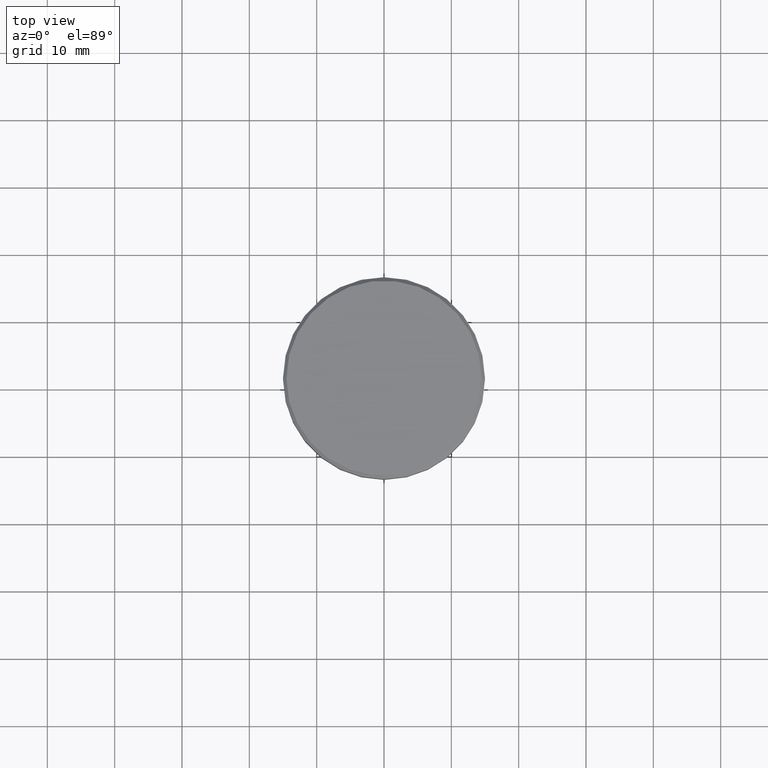
[diagram: clean part render]
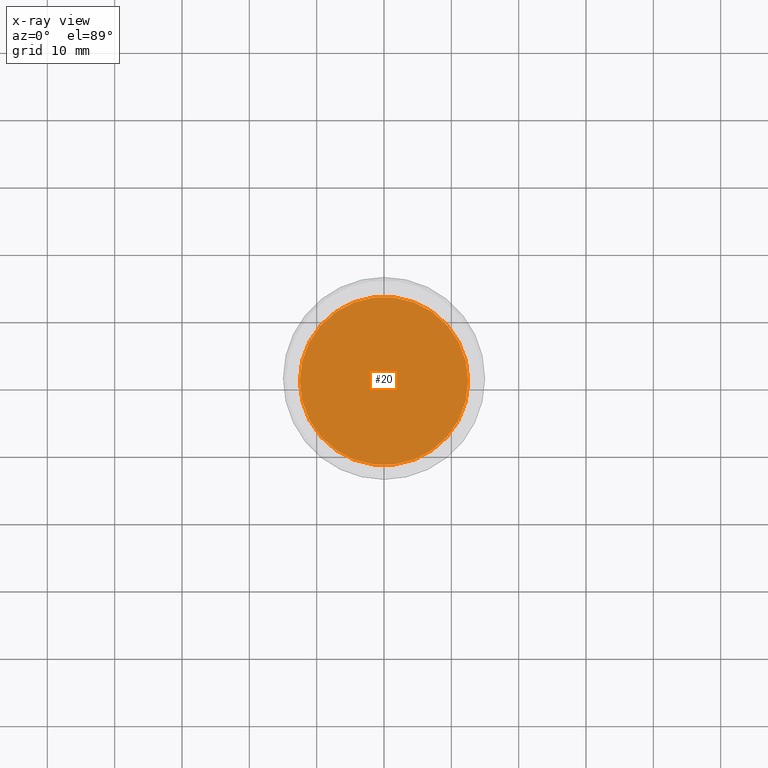
[diagram: x-ray — body ghosted, one internal face saturated and labeled with its STEP entity id]
A machine part, top view, then the same camera in x-ray: the body is ghosted and one INTERNAL B-rep face — a face not visible from any outside direction — is saturated and labeled: STEP entity #20.
In plain terms, the highlighted planar face has unit normal (0, 0, -1).
Its self-contained STEP definition (entity closure, byte-faithful):
#7 = DIRECTION ( 'NONE',  ( 0.000000000000000000, 0.000000000000000000, -1.000000000000000000 ) ) ;
#19 = DIRECTION ( 'NONE',  ( -0.000000000000000000, -0.000000000000000000, 1.000000000000000000 ) ) ;
#20 = ADVANCED_FACE ( 'NONE', ( #587 ), #97, .F. ) ;
#29 = CARTESIAN_POINT ( 'NONE',  ( 12.50000000000000000, 0.000000000000000000, -25.00000000000000000 ) ) ;
#87 = VERTEX_POINT ( 'NONE', #244 ) ;
#97 = PLANE ( 'NONE',  #1037 ) ;
#107 = AXIS2_PLACEMENT_3D ( 'NONE', #309, #564, #893 ) ;
#173 = VERTEX_POINT ( 'NONE', #29 ) ;
#244 = CARTESIAN_POINT ( 'NONE',  ( -12.50000000000000000, 1.530808498934191521E-15, -25.00000000000000000 ) ) ;
#261 = CARTESIAN_POINT ( 'NONE',  ( 0.000000000000000000, 0.000000000000000000, -25.00000000000000000 ) ) ;
#309 = CARTESIAN_POINT ( 'NONE',  ( 0.000000000000000000, 0.000000000000000000, -25.00000000000000000 ) ) ;
#313 = AXIS2_PLACEMENT_3D ( 'NONE', #261, #19, #513 ) ;
#347 = EDGE_CURVE ( 'NONE', #87, #173, #470, .T. ) ;
#470 = CIRCLE ( 'NONE', #107, 12.50000000000000000 ) ;
#513 = DIRECTION ( 'NONE',  ( 1.000000000000000000, 0.000000000000000000, 0.000000000000000000 ) ) ;
#564 = DIRECTION ( 'NONE',  ( -0.000000000000000000, -0.000000000000000000, 1.000000000000000000 ) ) ;
#587 = FACE_OUTER_BOUND ( 'NONE', #936, .T. ) ;
#739 = CARTESIAN_POINT ( 'NONE',  ( 0.000000000000000000, -3.469446951953614189E-15, -25.00000000000000000 ) ) ;
#778 = CIRCLE ( 'NONE', #313, 12.50000000000000000 ) ;
#842 = EDGE_CURVE ( 'NONE', #173, #87, #778, .T. ) ;
#893 = DIRECTION ( 'NONE',  ( 1.000000000000000000, 0.000000000000000000, 0.000000000000000000 ) ) ;
#915 = DIRECTION ( 'NONE',  ( -1.000000000000000000, 0.000000000000000000, -0.000000000000000000 ) ) ;
#936 = EDGE_LOOP ( 'NONE', ( #1019, #1052 ) ) ;
#1019 = ORIENTED_EDGE ( 'NONE', *, *, #842, .T. ) ;
#1037 = AXIS2_PLACEMENT_3D ( 'NONE', #739, #7, #915 ) ;
#1052 = ORIENTED_EDGE ( 'NONE', *, *, #347, .T. ) ;